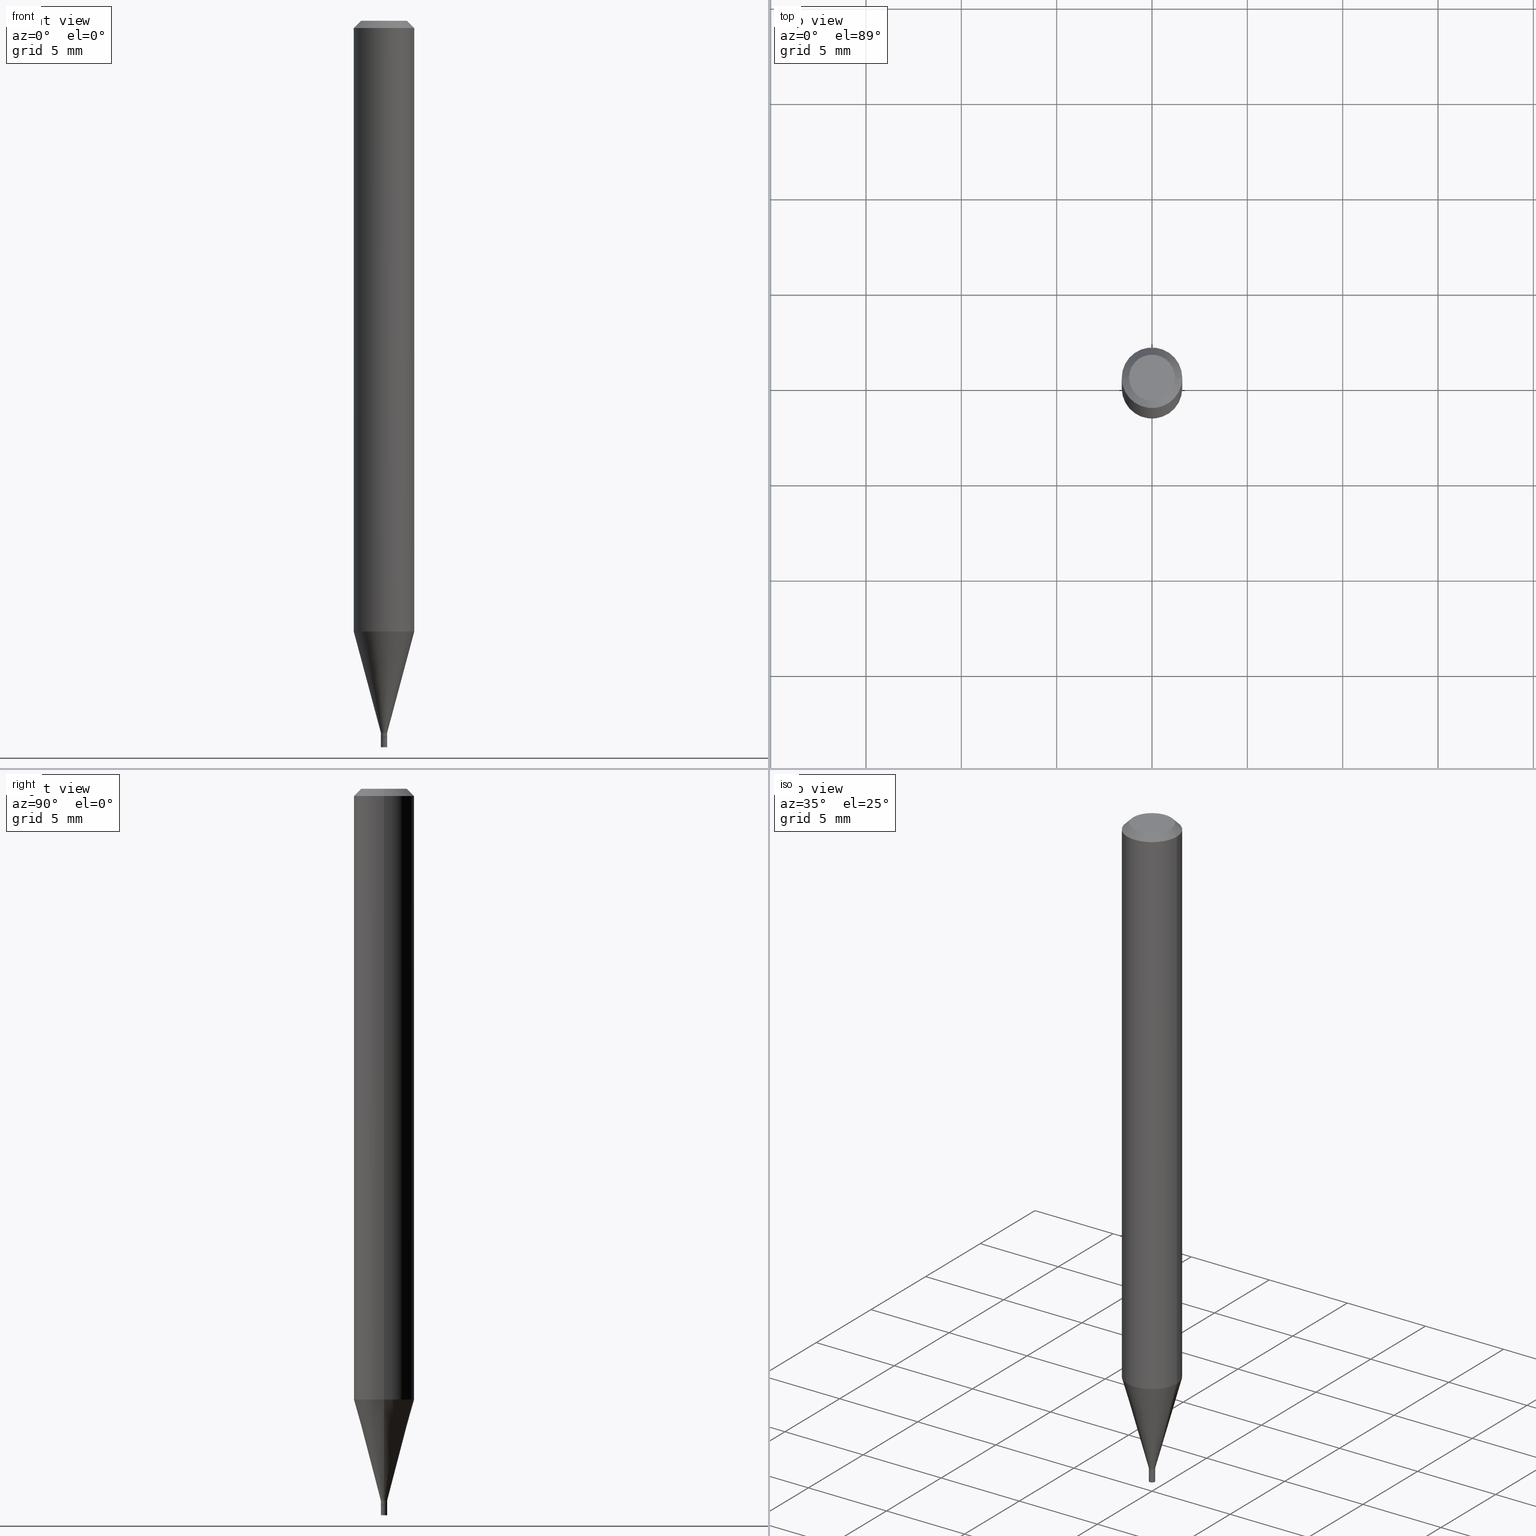
[diagram: canonical four-view strip — front | top / right | iso, engineering-drawing reading convention]
A machine part, canonical four-view strip (front | top / right | iso — engineering-drawing reading convention). The complete STEP part file that produces these views, byte-faithful:
ISO-10303-21;
HEADER;
FILE_DESCRIPTION (( 'STEP AP203' ),
    '1' );
FILE_NAME ('02209.STEP',
    '2024-03-18T19:54:26',
    ( '' ),
    ( '' ),
    'SwSTEP 2.0',
    'SolidWorks 2023',
    '' );
FILE_SCHEMA (( 'CONFIG_CONTROL_DESIGN' ));
ENDSEC;

DATA;
#1 = EDGE_LOOP ( 'NONE', ( #412, #67, #243, #125 ) ) ;
#2 = DIRECTION ( 'NONE',  ( 1.000000000000000000, -6.982962677686266711E-15, 0.000000000000000000 ) ) ;
#3 = CARTESIAN_POINT ( 'NONE',  ( 0.000000000000000000, 0.000000000000000000, 0.000000000000000000 ) ) ;
#4 = CARTESIAN_POINT ( 'NONE',  ( -4.460165479722938536E-44, 6.367934238710582481E-30, 1.823848854028390842E-15 ) ) ;
#5 = ORIENTED_EDGE ( 'NONE', *, *, #101, .F. ) ;
#6 = CONICAL_SURFACE ( 'NONE', #333, 0.005999999999999998390, 0.7853981633974718157 ) ;
#7 = ADVANCED_FACE ( 'NONE', ( #426 ), #38, .T. ) ;
#8 = CARTESIAN_POINT ( 'NONE',  ( 0.04749999999999999362, -4.035134999187546083E-16, 1.823848854028393603E-15 ) ) ;
#9 = DIRECTION ( 'NONE',  ( 1.000000000000000000, -6.982962677686194924E-15, 0.000000000000000000 ) ) ;
#10 = VERTEX_POINT ( 'NONE', #429 ) ;
#11 = DIRECTION ( 'NONE',  ( 1.000000000000000000, -6.982962677686334553E-15, 0.000000000000000000 ) ) ;
#12 = DIRECTION ( 'NONE',  ( -0.2588190451025211281, 5.211531920934547886E-15, 0.9659258262890679791 ) ) ;
#13 = ORIENTED_EDGE ( 'NONE', *, *, #113, .F. ) ;
#14 = CARTESIAN_POINT ( 'NONE',  ( 0.006499999999999998834, -5.282611265669678847E-15, -1.500000000000000222 ) ) ;
#15 = CARTESIAN_POINT ( 'NONE',  ( -0.006499999999999921639, -5.119461362994028005E-15, -1.479500000000000259 ) ) ;
#16 = ORIENTED_EDGE ( 'NONE', *, *, #132, .F. ) ;
#17 = AXIS2_PLACEMENT_3D ( 'NONE', #356, #393, #257 ) ;
#18 = DIRECTION ( 'NONE',  ( 1.000000000000000000, -6.982962677686193346E-15, 0.000000000000000000 ) ) ;
#19 = DIRECTION ( 'NONE',  ( -2.445468806185136597E-29, 3.491481338843145583E-15, 1.000000000000000000 ) ) ;
#20 = CARTESIAN_POINT ( 'NONE',  ( 3.594839145092150820E-29, -5.132477568099424807E-15, -1.470000000000000195 ) ) ;
#21 = MANIFOLD_SOLID_BREP ( 'Body-Move/Copy2[2]', #184 ) ;
#22 = VECTOR ( 'NONE', #96, 39.37007874015748143 ) ;
#23 = CARTESIAN_POINT ( 'NONE',  ( 3.594839145092150820E-29, -5.132477568099424807E-15, -1.470000000000000195 ) ) ;
#24 = DATE_AND_TIME ( #318, #62 ) ;
#25 = LINE ( 'NONE', #383, #26 ) ;
#26 = VECTOR ( 'NONE', #340, 39.37007874015748854 ) ;
#27 = CARTESIAN_POINT ( 'NONE',  ( 3.594839145092150820E-29, -5.132477568099424807E-15, -1.470000000000000195 ) ) ;
#28 = UNCERTAINTY_MEASURE_WITH_UNIT (LENGTH_MEASURE( 1.000000000000000082E-05 ), #281, 'distance_accuracy_value', 'NONE');
#29 = CC_DESIGN_PERSON_AND_ORGANIZATION_ASSIGNMENT ( #97, #61, ( #228 ) ) ;
#30 = CARTESIAN_POINT ( 'NONE',  ( 0.000000000000000000, 0.000000000000000000, 0.000000000000000000 ) ) ;
#31 = CALENDAR_DATE ( 2024, 18, 3 ) ;
#32 = EDGE_LOOP ( 'NONE', ( #336, #437, #162, #439 ) ) ;
#33 = ORGANIZATION ( 'UNSPECIFIED', 'UNSPECIFIED', '' ) ;
#34 = PRODUCT_DEFINITION ( 'UNKNOWN', '', #355, #315 ) ;
#35 = FACE_OUTER_BOUND ( 'NONE', #1, .T. ) ;
#36 = DIRECTION ( 'NONE',  ( -2.445468806185136597E-29, 3.491481338843145583E-15, 1.000000000000000000 ) ) ;
#37 = EDGE_CURVE ( 'NONE', #420, #129, #384, .T. ) ;
#38 = CONICAL_SURFACE ( 'NONE', #161, 0.006499999999999919904, 0.2617993877991498519 ) ;
#39 = AXIS2_PLACEMENT_3D ( 'NONE', #30, #389, #103 ) ;
#40 = AXIS2_PLACEMENT_3D ( 'NONE', #306, #403, #47 ) ;
#41 = VERTEX_POINT ( 'NONE', #189 ) ;
#42 = APPROVAL ( #285, 'UNSPECIFIED' ) ;
#43 = FACE_OUTER_BOUND ( 'NONE', #303, .T. ) ;
#44 = ORIENTED_EDGE ( 'NONE', *, *, #305, .F. ) ;
#45 = CARTESIAN_POINT ( 'NONE',  ( -0.04749999999999999362, 3.578768372314242553E-16, 1.823848854028388475E-15 ) ) ;
#46 = EDGE_CURVE ( 'NONE', #331, #300, #304, .T. ) ;
#47 = DIRECTION ( 'NONE',  ( 1.000000000000000000, -6.982962677686193346E-15, 0.000000000000000000 ) ) ;
#48 = EDGE_LOOP ( 'NONE', ( #327, #51, #269, #205 ) ) ;
#49 = AXIS2_PLACEMENT_3D ( 'NONE', #117, #406, #367 ) ;
#50 = CARTESIAN_POINT ( 'NONE',  ( -0.06250000000000000000, -1.783484883234218729E-15, -0.01499999999999999944 ) ) ;
#51 = ORIENTED_EDGE ( 'NONE', *, *, #305, .T. ) ;
#52 = ADVANCED_FACE ( 'NONE', ( #147 ), #98, .T. ) ;
#53 = CARTESIAN_POINT ( 'NONE',  ( -0.06250000000000000000, 4.440892098500626162E-16, -3.074334431409316114E-30 ) ) ;
#54 = CARTESIAN_POINT ( 'NONE',  ( -4.460165479722938536E-44, 6.367934238710582481E-30, 1.823848854028390842E-15 ) ) ;
#55 = ORIENTED_EDGE ( 'NONE', *, *, #187, .T. ) ;
#56 = CIRCLE ( 'NONE', #350, 0.005999999999999998390 ) ;
#57 = DIRECTION ( 'NONE',  ( -2.445468806185136597E-29, 3.491481338843145583E-15, 1.000000000000000000 ) ) ;
#58 = EDGE_LOOP ( 'NONE', ( #198, #44 ) ) ;
#59 = CARTESIAN_POINT ( 'NONE',  ( 0.005999999999999998390, -5.209290157553973331E-15, -1.479999999999999982 ) ) ;
#60 = FACE_OUTER_BOUND ( 'NONE', #282, .T. ) ;
#61 = PERSON_AND_ORGANIZATION_ROLE ( 'classification_officer' ) ;
#62 = LOCAL_TIME ( 15, 54, 26.00000000000000000, #66 ) ;
#63 = DIRECTION ( 'NONE',  ( -2.438088387897960049E-29, 3.491481338843145188E-15, 1.000000000000000000 ) ) ;
#64 = COORDINATED_UNIVERSAL_TIME_OFFSET ( 5, 0, .BEHIND. ) ;
#65 = AXIS2_PLACEMENT_3D ( 'NONE', #3, #290, #230 ) ;
#66 = COORDINATED_UNIVERSAL_TIME_OFFSET ( 5, 0, .BEHIND. ) ;
#67 = ORIENTED_EDGE ( 'NONE', *, *, #260, .T. ) ;
#68 = APPROVAL_PERSON_ORGANIZATION ( #456, #411, #104 ) ;
#69 = CARTESIAN_POINT ( 'NONE',  ( 0.006499999999999919904, -5.177866825504383900E-15, -1.470000000000000195 ) ) ;
#70 = VECTOR ( 'NONE', #192, 39.37007874015748854 ) ;
#71 = DIRECTION ( 'NONE',  ( 1.000000000000000000, -6.982962677686262766E-15, 0.000000000000000000 ) ) ;
#72 = CARTESIAN_POINT ( 'NONE',  ( 4.538925740499691497E-17, 0.006499999999994831960, -1.479999999999999982 ) ) ;
#73 = AXIS2_PLACEMENT_3D ( 'NONE', #23, #312, #455 ) ;
#74 = ORIENTED_EDGE ( 'NONE', *, *, #353, .F. ) ;
#75 = LINE ( 'NONE', #365, #344 ) ;
#76 = AXIS2_PLACEMENT_3D ( 'NONE', #4, #190, #334 ) ;
#77 = ORIENTED_EDGE ( 'NONE', *, *, #46, .F. ) ;
#78 = CARTESIAN_POINT ( 'NONE',  ( 0.000000000000000000, 0.000000000000000000, 0.000000000000000000 ) ) ;
#79 = ADVANCED_FACE ( 'NONE', ( #394 ), #256, .T. ) ;
#80 = LINE ( 'NONE', #145, #149 ) ;
#81 = CARTESIAN_POINT ( 'NONE',  ( -0.005999999999999998390, -5.122110590168138417E-15, -1.479999999999999982 ) ) ;
#82 = CC_DESIGN_APPROVAL ( #415, ( #34 ) ) ;
#83 = ORIENTED_EDGE ( 'NONE', *, *, #37, .T. ) ;
#84 = DIRECTION ( 'NONE',  ( -0.7071067811865642261, 7.493145998870414114E-15, 0.7071067811865309194 ) ) ;
#85 = EDGE_CURVE ( 'NONE', #144, #214, #438, .T. ) ;
#86 = EDGE_LOOP ( 'NONE', ( #442, #295, #141, #150 ) ) ;
#87 = CIRCLE ( 'NONE', #188, 0.006499999999999919904 ) ;
#88 = LINE ( 'NONE', #217, #179 ) ;
#89 = EDGE_LOOP ( 'NONE', ( #13, #444, #378, #310 ) ) ;
#90 = DIRECTION ( 'NONE',  ( 1.000000000000000000, -6.982962677686265922E-15, 4.876176775795935793E-29 ) ) ;
#91 = ORIENTED_EDGE ( 'NONE', *, *, #132, .T. ) ;
#92 = APPROVAL_PERSON_ORGANIZATION ( #140, #415, #428 ) ;
#93 = CARTESIAN_POINT ( 'NONE',  ( 3.618071098750910124E-29, -5.165646640818434953E-15, -1.479500000000000259 ) ) ;
#94 = CARTESIAN_POINT ( 'NONE',  ( 3.083748770443718248E-29, -4.402775966085916006E-15, -1.261005154776143167 ) ) ;
#95 = ADVANCED_FACE ( 'NONE', ( #110 ), #397, .F. ) ;
#96 = DIRECTION ( 'NONE',  ( -2.445468806185136877E-29, 3.491481338843145188E-15, 1.000000000000000000 ) ) ;
#97 = PERSON_AND_ORGANIZATION ( #359, #33 ) ;
#98 = CONICAL_SURFACE ( 'NONE', #116, 0.06250000000000000000, 0.7853981633973876608 ) ;
#99 = APPLICATION_PROTOCOL_DEFINITION ( 'international standard', 'config_control_design', 1994, #171 ) ;
#100 = DIRECTION ( 'NONE',  ( 1.000000000000000000, -6.982962677686194924E-15, 0.000000000000000000 ) ) ;
#101 = EDGE_CURVE ( 'NONE', #374, #272, #352, .T. ) ;
#102 = PERSON_AND_ORGANIZATION ( #359, #33 ) ;
#103 = DIRECTION ( 'NONE',  ( 1.000000000000000000, 0.000000000000000000, 0.000000000000000000 ) ) ;
#104 = APPROVAL_ROLE ( '' ) ;
#105 = DATE_AND_TIME ( #31, #139 ) ;
#106 = FACE_OUTER_BOUND ( 'NONE', #341, .T. ) ;
#107 = DIRECTION ( 'NONE',  ( 2.445468806185136597E-29, -3.491481338843145583E-15, -1.000000000000000000 ) ) ;
#108 = DIRECTION ( 'NONE',  ( 2.445468806185136597E-29, -3.491481338843145583E-15, -1.000000000000000000 ) ) ;
#109 = CIRCLE ( 'NONE', #76, 0.04749999999999999362 ) ;
#110 = FACE_OUTER_BOUND ( 'NONE', #112, .T. ) ;
#111 = CARTESIAN_POINT ( 'NONE',  ( 3.083748770443718248E-29, -4.402775966085916006E-15, -1.261005154776143167 ) ) ;
#112 = EDGE_LOOP ( 'NONE', ( #155, #239 ) ) ;
#113 = EDGE_CURVE ( 'NONE', #214, #420, #407, .T. ) ;
#114 = FACE_OUTER_BOUND ( 'NONE', #48, .T. ) ;
#115 = VERTEX_POINT ( 'NONE', #81 ) ;
#116 = AXIS2_PLACEMENT_3D ( 'NONE', #226, #107, #358 ) ;
#117 = CARTESIAN_POINT ( 'NONE',  ( 3.316907271900976096E-16, 0.04749999999999999362, 7.460790634191459752E-16 ) ) ;
#118 = ORIENTED_EDGE ( 'NONE', *, *, #292, .F. ) ;
#119 = EDGE_CURVE ( 'NONE', #274, #201, #197, .T. ) ;
#120 = CARTESIAN_POINT ( 'NONE',  ( -0.005999999999999998390, -5.124759817342248830E-15, -1.479999999999999982 ) ) ;
#121 = AXIS2_PLACEMENT_3D ( 'NONE', #345, #240, #375 ) ;
#122 = ORIENTED_EDGE ( 'NONE', *, *, #380, .F. ) ;
#123 = DIRECTION ( 'NONE',  ( 2.438088387897960049E-29, -3.491481338843145188E-15, -1.000000000000000000 ) ) ;
#124 = DIRECTION ( 'NONE',  ( 1.000000000000000000, -6.982962677686262766E-15, 0.000000000000000000 ) ) ;
#125 = ORIENTED_EDGE ( 'NONE', *, *, #431, .F. ) ;
#126 = CIRCLE ( 'NONE', #121, 0.06250000000000000000 ) ;
#127 = DIRECTION ( 'NONE',  ( -2.445468806185136597E-29, 3.491481338843145583E-15, 1.000000000000000000 ) ) ;
#128 = CC_DESIGN_PERSON_AND_ORGANIZATION_ASSIGNMENT ( #102, #423, ( #355 ) ) ;
#129 = VERTEX_POINT ( 'NONE', #346 ) ;
#130 = DIRECTION ( 'NONE',  ( -2.438088387897960049E-29, 3.491481338843145188E-15, 1.000000000000000000 ) ) ;
#131 = CARTESIAN_POINT ( 'NONE',  ( 3.619293833154002365E-29, -5.167392381487854879E-15, -1.479999999999999982 ) ) ;
#132 = EDGE_CURVE ( 'NONE', #10, #214, #87, .T. ) ;
#133 = EDGE_CURVE ( 'NONE', #414, #41, #311, .T. ) ;
#134 = DIRECTION ( 'NONE',  ( 1.000000000000000000, -6.982962677686334553E-15, 0.000000000000000000 ) ) ;
#135 = DATE_AND_TIME ( #253, #284 ) ;
#136 = LINE ( 'NONE', #53, #22 ) ;
#137 = PERSON_AND_ORGANIZATION_ROLE ( 'design_owner' ) ;
#138 = EDGE_CURVE ( 'NONE', #361, #252, #313, .T. ) ;
#139 = LOCAL_TIME ( 15, 54, 26.00000000000000000, #251 ) ;
#140 = PERSON_AND_ORGANIZATION ( #359, #33 ) ;
#141 = ORIENTED_EDGE ( 'NONE', *, *, #138, .F. ) ;
#142 = DATE_TIME_ROLE ( 'creation_date' ) ;
#143 = CONICAL_SURFACE ( 'NONE', #448, 0.06250000000000000000, 0.7853981633973876608 ) ;
#144 = VERTEX_POINT ( 'NONE', #15 ) ;
#145 = CARTESIAN_POINT ( 'NONE',  ( 0.006499999999999998834, -4.538925740496073214E-17, 3.169514904267357635E-31 ) ) ;
#146 = AXIS2_PLACEMENT_3D ( 'NONE', #170, #57, #206 ) ;
#147 = FACE_OUTER_BOUND ( 'NONE', #186, .T. ) ;
#148 = FACE_OUTER_BOUND ( 'NONE', #32, .T. ) ;
#149 = VECTOR ( 'NONE', #154, 39.37007874015748143 ) ;
#150 = ORIENTED_EDGE ( 'NONE', *, *, #187, .F. ) ;
#151 = ORIENTED_EDGE ( 'NONE', *, *, #119, .T. ) ;
#152 = FACE_OUTER_BOUND ( 'NONE', #237, .T. ) ;
#153 = APPROVAL_PERSON_ORGANIZATION ( #430, #42, #425 ) ;
#154 = DIRECTION ( 'NONE',  ( -2.445468806185136877E-29, 3.491481338843145188E-15, 1.000000000000000000 ) ) ;
#155 = ORIENTED_EDGE ( 'NONE', *, *, #138, .T. ) ;
#156 = PLANE ( 'NONE',  #49 ) ;
#157 = DIRECTION ( 'NONE',  ( -2.445468806185136597E-29, 3.491481338843145583E-15, 1.000000000000000000 ) ) ;
#158 = ORIENTED_EDGE ( 'NONE', *, *, #380, .T. ) ;
#159 = CARTESIAN_POINT ( 'NONE',  ( 3.668203209277704895E-29, -5.237222008264718177E-15, -1.500000000000000222 ) ) ;
#160 = CARTESIAN_POINT ( 'NONE',  ( 3.619293833154002365E-29, -5.167392381487854879E-15, -1.479999999999999982 ) ) ;
#161 = AXIS2_PLACEMENT_3D ( 'NONE', #27, #176, #100 ) ;
#162 = ORIENTED_EDGE ( 'NONE', *, *, #369, .T. ) ;
#163 = CARTESIAN_POINT ( 'NONE',  ( 0.000000000000000000, 0.000000000000000000, 0.000000000000000000 ) ) ;
#164 = ORIENTED_EDGE ( 'NONE', *, *, #208, .F. ) ;
#165 = CIRCLE ( 'NONE', #40, 0.006499999999999921639 ) ;
#166 = DIRECTION ( 'NONE',  ( 1.000000000000000000, -6.982962677686265922E-15, 4.876176775795935793E-29 ) ) ;
#167 = CARTESIAN_POINT ( 'NONE',  ( 0.005999999999999998390, -5.209290157553973331E-15, -1.479999999999999982 ) ) ;
#168 = ADVANCED_FACE ( 'NONE', ( #148 ), #143, .T. ) ;
#169 = ADVANCED_FACE ( 'NONE', ( #152 ), #268, .T. ) ;
#170 = CARTESIAN_POINT ( 'NONE',  ( 3.668203209277704895E-29, -5.237222008264718177E-15, -1.500000000000000222 ) ) ;
#171 = APPLICATION_CONTEXT ( 'configuration controlled 3d designs of mechanical parts and assemblies' ) ;
#172 = FACE_OUTER_BOUND ( 'NONE', #58, .T. ) ;
#173 = AXIS2_PLACEMENT_3D ( 'NONE', #200, #338, #11 ) ;
#174 = ADVANCED_FACE ( 'NONE', ( #43 ), #232, .T. ) ;
#175 = FACE_OUTER_BOUND ( 'NONE', #317, .T. ) ;
#176 = DIRECTION ( 'NONE',  ( -2.445468806185136597E-29, 3.491481338843145583E-15, 1.000000000000000000 ) ) ;
#177 = PERSON_AND_ORGANIZATION ( #359, #33 ) ;
#178 = LENGTH_MEASURE_WITH_UNIT ( LENGTH_MEASURE( 0.02539999999999999897 ), #275 );
#179 = VECTOR ( 'NONE', #343, 39.37007874015748854 ) ;
#180 = APPROVAL_DATE_TIME ( #105, #415 ) ;
#181 = PERSON_AND_ORGANIZATION_ROLE ( 'design_supplier' ) ;
#182 = CARTESIAN_POINT ( 'NONE',  ( 0.006499999999999921639, -4.538925740496018363E-17, 3.169514904267319975E-31 ) ) ;
#183 = EDGE_CURVE ( 'NONE', #10, #129, #297, .T. ) ;
#184 = CLOSED_SHELL ( 'NONE', ( #385, #329, #52, #174, #422, #7, #169, #168, #225, #337, #223, #207 ) ) ;
#185 = CC_DESIGN_APPROVAL ( #411, ( #228 ) ) ;
#186 = EDGE_LOOP ( 'NONE', ( #265, #366, #362, #451 ) ) ;
#187 = EDGE_CURVE ( 'NONE', #374, #361, #80, .T. ) ;
#188 = AXIS2_PLACEMENT_3D ( 'NONE', #241, #19, #9 ) ;
#189 = CARTESIAN_POINT ( 'NONE',  ( 0.006499999999999921639, -5.211035898223394834E-15, -1.479500000000000259 ) ) ;
#190 = DIRECTION ( 'NONE',  ( -2.445468806185136597E-29, 3.491481338843145583E-15, 1.000000000000000000 ) ) ;
#191 = ORIENTED_EDGE ( 'NONE', *, *, #452, .T. ) ;
#192 = DIRECTION ( 'NONE',  ( 0.2588190451025211281, 1.565188264969622954E-15, 0.9659258262890679791 ) ) ;
#193 = ORIENTED_EDGE ( 'NONE', *, *, #436, .F. ) ;
#194 = CARTESIAN_POINT ( 'NONE',  ( -0.006499999999999919904, -4.522489523255436413E-15, -1.470000000000000195 ) ) ;
#195 = APPLICATION_CONTEXT ( 'configuration controlled 3d designs of mechanical parts and assemblies' ) ;
#196 = ADVANCED_BREP_SHAPE_REPRESENTATION ( '02209', ( #332, #21, #39 ), #242 ) ;
#197 = CIRCLE ( 'NONE', #250, 0.04749999999999999362 ) ;
#198 = ORIENTED_EDGE ( 'NONE', *, *, #452, .F. ) ;
#199 = DIRECTION ( 'NONE',  ( -2.445468806185136597E-29, 3.491481338843145583E-15, 1.000000000000000000 ) ) ;
#200 = CARTESIAN_POINT ( 'NONE',  ( 3.619293833154002365E-29, -5.167392381487854879E-15, -1.479999999999999982 ) ) ;
#201 = VERTEX_POINT ( 'NONE', #45 ) ;
#202 = CARTESIAN_POINT ( 'NONE',  ( 3.576687321579069994E-29, -5.368277968210015545E-15, -1.500000000000000222 ) ) ;
#203 = PRODUCT_DEFINITION_SHAPE ( 'NONE', 'NONE',  #34 ) ;
#204 = DIRECTION ( 'NONE',  ( 0.7071067811865642261, -2.468850131082431399E-15, 0.7071067811865309194 ) ) ;
#205 = ORIENTED_EDGE ( 'NONE', *, *, #260, .F. ) ;
#206 = DIRECTION ( 'NONE',  ( 1.000000000000000000, -6.982962677686258822E-15, 0.000000000000000000 ) ) ;
#207 = ADVANCED_FACE ( 'NONE', ( #35 ), #224, .T. ) ;
#208 = EDGE_CURVE ( 'NONE', #272, #252, #75, .T. ) ;
#209 = ORIENTED_EDGE ( 'NONE', *, *, #436, .T. ) ;
#210 = AXIS2_PLACEMENT_3D ( 'NONE', #160, #441, #266 ) ;
#211 = FACE_OUTER_BOUND ( 'NONE', #370, .T. ) ;
#212 = CARTESIAN_POINT ( 'NONE',  ( -0.006499999999999919904, -5.086292290275018648E-15, -1.470000000000000195 ) ) ;
#213 = FACE_OUTER_BOUND ( 'NONE', #86, .T. ) ;
#214 = VERTEX_POINT ( 'NONE', #194 ) ;
#215 = CLOSED_SHELL ( 'NONE', ( #395, #464, #79, #95 ) ) ;
#216 = EDGE_CURVE ( 'NONE', #41, #10, #440, .T. ) ;
#217 = CARTESIAN_POINT ( 'NONE',  ( 0.06250000000000000000, -4.811533449433679005E-16, -0.01499999999999999944 ) ) ;
#218 = APPROVAL_DATE_TIME ( #386, #411 ) ;
#219 = AXIS2_PLACEMENT_3D ( 'NONE', #72, #123, #234 ) ;
#220 =( NAMED_UNIT ( * ) PLANE_ANGLE_UNIT ( ) SI_UNIT ( $, .RADIAN. ) );
#221 = SECURITY_CLASSIFICATION_LEVEL ( 'unclassified' ) ;
#222 = CC_DESIGN_SECURITY_CLASSIFICATION ( #228, ( #355 ) ) ;
#223 = ADVANCED_FACE ( 'NONE', ( #114 ), #286, .T. ) ;
#224 = CYLINDRICAL_SURFACE ( 'NONE', #65, 0.006499999999999921639 ) ;
#225 = ADVANCED_FACE ( 'NONE', ( #398 ), #156, .F. ) ;
#226 = CARTESIAN_POINT ( 'NONE',  ( 3.668203209277705088E-31, -5.237222008264718399E-17, -0.01499999999999999944 ) ) ;
#227 = DIRECTION ( 'NONE',  ( -2.445468806185136597E-29, 3.491481338843145583E-15, 1.000000000000000000 ) ) ;
#228 = SECURITY_CLASSIFICATION ( '', '', #221 ) ;
#229 = VECTOR ( 'NONE', #435, 39.37007874015748143 ) ;
#230 = DIRECTION ( 'NONE',  ( 1.000000000000000000, -6.982962677686265922E-15, 4.876176775795935793E-29 ) ) ;
#231 = ORIENTED_EDGE ( 'NONE', *, *, #287, .T. ) ;
#232 = CYLINDRICAL_SURFACE ( 'NONE', #17, 0.06250000000000000000 ) ;
#233 = DIRECTION ( 'NONE',  ( -2.445468806185136877E-29, 3.491481338843145188E-15, 1.000000000000000000 ) ) ;
#234 = DIRECTION ( 'NONE',  ( -1.000000000000000000, 6.982962677686265922E-15, -4.876176775795935793E-29 ) ) ;
#235 = DIRECTION ( 'NONE',  ( -2.445468806185136597E-29, 3.491481338843145583E-15, 1.000000000000000000 ) ) ;
#236 = AXIS2_PLACEMENT_3D ( 'NONE', #94, #246, #124 ) ;
#237 = EDGE_LOOP ( 'NONE', ( #193, #83, #231, #349 ) ) ;
#238 = DIRECTION ( 'NONE',  ( -2.445468806185136597E-29, 3.491481338843145583E-15, 1.000000000000000000 ) ) ;
#239 = ORIENTED_EDGE ( 'NONE', *, *, #292, .T. ) ;
#240 = DIRECTION ( 'NONE',  ( -2.445468806185136597E-29, 3.491481338843145583E-15, 1.000000000000000000 ) ) ;
#241 = CARTESIAN_POINT ( 'NONE',  ( 3.594839145092150820E-29, -5.132477568099424807E-15, -1.470000000000000195 ) ) ;
#242 =( GEOMETRIC_REPRESENTATION_CONTEXT ( 3 ) GLOBAL_UNCERTAINTY_ASSIGNED_CONTEXT ( ( #28 ) ) GLOBAL_UNIT_ASSIGNED_CONTEXT ( ( #281, #220, #392 ) ) REPRESENTATION_CONTEXT ( 'NONE', 'WORKASPACE' ) );
#243 = ORIENTED_EDGE ( 'NONE', *, *, #216, .T. ) ;
#244 = DIRECTION ( 'NONE',  ( -2.445468806185136597E-29, 3.491481338843145583E-15, 1.000000000000000000 ) ) ;
#245 = CALENDAR_DATE ( 2024, 18, 3 ) ;
#246 = DIRECTION ( 'NONE',  ( -2.445468806185136597E-29, 3.491481338843145583E-15, 1.000000000000000000 ) ) ;
#247 = CARTESIAN_POINT ( 'NONE',  ( 3.619293833154002365E-29, -5.167392381487854879E-15, -1.479999999999999982 ) ) ;
#248 = APPROVAL_DATE_TIME ( #24, #42 ) ;
#249 = ORIENTED_EDGE ( 'NONE', *, *, #133, .F. ) ;
#250 = AXIS2_PLACEMENT_3D ( 'NONE', #54, #416, #335 ) ;
#251 = COORDINATED_UNIVERSAL_TIME_OFFSET ( 5, 0, .BEHIND. ) ;
#252 = VERTEX_POINT ( 'NONE', #462 ) ;
#253 = CALENDAR_DATE ( 2024, 18, 3 ) ;
#254 = CC_DESIGN_DATE_AND_TIME_ASSIGNMENT ( #135, #142, ( #34 ) ) ;
#255 = DIRECTION ( 'NONE',  ( 1.000000000000000000, -6.982962677686266711E-15, 4.876176775795935793E-29 ) ) ;
#256 = CYLINDRICAL_SURFACE ( 'NONE', #325, 0.006499999999999998834 ) ;
#257 = DIRECTION ( 'NONE',  ( 1.000000000000000000, -6.982962677686266711E-15, 4.876176775795935793E-29 ) ) ;
#258 = CIRCLE ( 'NONE', #173, 0.005999999999999998390 ) ;
#259 = DIRECTION ( 'NONE',  ( 1.000000000000000000, -6.982962677686267499E-15, 4.876176775795935793E-29 ) ) ;
#260 = EDGE_CURVE ( 'NONE', #144, #41, #165, .T. ) ;
#261 = CARTESIAN_POINT ( 'NONE',  ( 0.000000000000000000, 0.000000000000000000, 0.000000000000000000 ) ) ;
#262 = AXIS2_PLACEMENT_3D ( 'NONE', #449, #244, #90 ) ;
#263 = CARTESIAN_POINT ( 'NONE',  ( -0.006499999999999921639, 4.618527782440595529E-17, -3.197307808665649928E-31 ) ) ;
#264 = DIRECTION ( 'NONE',  ( 1.000000000000000000, -6.982962677686334553E-15, 0.000000000000000000 ) ) ;
#265 = ORIENTED_EDGE ( 'NONE', *, *, #119, .F. ) ;
#266 = DIRECTION ( 'NONE',  ( 1.000000000000000000, -6.982962677686258822E-15, 0.000000000000000000 ) ) ;
#267 = CC_DESIGN_PERSON_AND_ORGANIZATION_ASSIGNMENT ( #320, #457, ( #34 ) ) ;
#268 = CYLINDRICAL_SURFACE ( 'NONE', #409, 0.06250000000000000000 ) ;
#269 = ORIENTED_EDGE ( 'NONE', *, *, #133, .T. ) ;
#270 = CYLINDRICAL_SURFACE ( 'NONE', #262, 0.006499999999999921639 ) ;
#271 = EDGE_CURVE ( 'NONE', #201, #274, #109, .T. ) ;
#272 = VERTEX_POINT ( 'NONE', #328 ) ;
#273 = CYLINDRICAL_SURFACE ( 'NONE', #319, 0.006499999999999998834 ) ;
#274 = VERTEX_POINT ( 'NONE', #8 ) ;
#275 =( LENGTH_UNIT ( ) NAMED_UNIT ( * ) SI_UNIT ( $, .METRE. ) );
#276 = AXIS2_PLACEMENT_3D ( 'NONE', #20, #413, #348 ) ;
#277 = CARTESIAN_POINT ( 'NONE',  ( 0.06250000000000000000, -4.888073874380388472E-16, -0.01499999999999999944 ) ) ;
#278 = AXIS2_PLACEMENT_3D ( 'NONE', #131, #157, #302 ) ;
#279 = CALENDAR_DATE ( 2024, 18, 3 ) ;
#280 = CARTESIAN_POINT ( 'NONE',  ( 0.006499999999999998834, -5.212781638892815549E-15, -1.479999999999999982 ) ) ;
#281 =( CONVERSION_BASED_UNIT ( 'INCH', #178 ) LENGTH_UNIT ( ) NAMED_UNIT ( #289 ) );
#282 = EDGE_LOOP ( 'NONE', ( #158, #324, #16, #447 ) ) ;
#283 = DATE_TIME_ROLE ( 'classification_date' ) ;
#284 = LOCAL_TIME ( 15, 54, 26.00000000000000000, #64 ) ;
#285 = APPROVAL_STATUS ( 'not_yet_approved' ) ;
#286 = CONICAL_SURFACE ( 'NONE', #400, 0.005999999999999998390, 0.7853981633974718157 ) ;
#287 = EDGE_CURVE ( 'NONE', #129, #331, #401, .T. ) ;
#288 = MECHANICAL_CONTEXT ( 'NONE', #171, 'mechanical' ) ;
#289 = DIMENSIONAL_EXPONENTS ( 1.000000000000000000, 0.000000000000000000, 0.000000000000000000, 0.000000000000000000, 0.000000000000000000, 0.000000000000000000, 0.000000000000000000 ) ;
#290 = DIRECTION ( 'NONE',  ( -2.445468806185136597E-29, 3.491481338843145583E-15, 1.000000000000000000 ) ) ;
#291 = CIRCLE ( 'NONE', #146, 0.006499999999999998834 ) ;
#292 = EDGE_CURVE ( 'NONE', #252, #361, #371, .T. ) ;
#293 = CIRCLE ( 'NONE', #465, 0.006499999999999921639 ) ;
#294 = CARTESIAN_POINT ( 'NONE',  ( 3.668203209277705088E-31, -5.237222008264718399E-17, -0.01499999999999999944 ) ) ;
#295 = ORIENTED_EDGE ( 'NONE', *, *, #208, .T. ) ;
#296 = AXIS2_PLACEMENT_3D ( 'NONE', #202, #130, #166 ) ;
#297 = LINE ( 'NONE', #69, #70 ) ;
#298 = EDGE_CURVE ( 'NONE', #115, #144, #443, .T. ) ;
#299 = CARTESIAN_POINT ( 'NONE',  ( 0.06250000000000000000, -4.364351673553916694E-16, 3.047610484872459871E-30 ) ) ;
#300 = VERTEX_POINT ( 'NONE', #50 ) ;
#301 = DIRECTION ( 'NONE',  ( -2.445468806185136877E-29, 3.491481338843145188E-15, 1.000000000000000000 ) ) ;
#302 = DIRECTION ( 'NONE',  ( 1.000000000000000000, -6.982962677686258822E-15, 0.000000000000000000 ) ) ;
#303 = EDGE_LOOP ( 'NONE', ( #432, #209, #77, #339 ) ) ;
#304 = CIRCLE ( 'NONE', #360, 0.06250000000000000000 ) ;
#305 = EDGE_CURVE ( 'NONE', #115, #414, #258, .T. ) ;
#306 = CARTESIAN_POINT ( 'NONE',  ( 3.618071098750910124E-29, -5.165646640818434953E-15, -1.479500000000000259 ) ) ;
#307 = ORIENTED_EDGE ( 'NONE', *, *, #298, .T. ) ;
#308 = DIRECTION ( 'NONE',  ( 1.000000000000000000, -6.982962677686334553E-15, 0.000000000000000000 ) ) ;
#309 = VECTOR ( 'NONE', #12, 39.37007874015748854 ) ;
#310 = ORIENTED_EDGE ( 'NONE', *, *, #37, .F. ) ;
#311 = LINE ( 'NONE', #167, #387 ) ;
#312 = DIRECTION ( 'NONE',  ( -2.445468806185136597E-29, 3.491481338843145583E-15, 1.000000000000000000 ) ) ;
#313 = CIRCLE ( 'NONE', #278, 0.006499999999999998834 ) ;
#314 = APPROVAL_STATUS ( 'not_yet_approved' ) ;
#315 = DESIGN_CONTEXT ( 'detailed design', #195, 'design' ) ;
#316 = PERSON_AND_ORGANIZATION ( #359, #33 ) ;
#317 = EDGE_LOOP ( 'NONE', ( #5, #408 ) ) ;
#318 = CALENDAR_DATE ( 2024, 18, 3 ) ;
#319 = AXIS2_PLACEMENT_3D ( 'NONE', #163, #127, #377 ) ;
#320 = PERSON_AND_ORGANIZATION ( #359, #33 ) ;
#321 = COORDINATED_UNIVERSAL_TIME_OFFSET ( 5, 0, .BEHIND. ) ;
#322 = DIRECTION ( 'NONE',  ( -2.445468806185136597E-29, 3.491481338843145583E-15, 1.000000000000000000 ) ) ;
#323 = LOCAL_TIME ( 15, 54, 26.00000000000000000, #391 ) ;
#324 = ORIENTED_EDGE ( 'NONE', *, *, #85, .T. ) ;
#325 = AXIS2_PLACEMENT_3D ( 'NONE', #261, #227, #259 ) ;
#326 = CC_DESIGN_PERSON_AND_ORGANIZATION_ASSIGNMENT ( #177, #181, ( #355 ) ) ;
#327 = ORIENTED_EDGE ( 'NONE', *, *, #298, .F. ) ;
#328 = CARTESIAN_POINT ( 'NONE',  ( -0.006499999999999998834, -5.156121917051880369E-15, -1.500000000000000222 ) ) ;
#329 = ADVANCED_FACE ( 'NONE', ( #106 ), #6, .T. ) ;
#330 = CARTESIAN_POINT ( 'NONE',  ( 3.619293833154002365E-29, -5.167392381487854879E-15, -1.479999999999999982 ) ) ;
#331 = VERTEX_POINT ( 'NONE', #277 ) ;
#332 = MANIFOLD_SOLID_BREP ( 'Body-Move/Copy2[1]', #215 ) ;
#333 = AXIS2_PLACEMENT_3D ( 'NONE', #453, #238, #134 ) ;
#334 = DIRECTION ( 'NONE',  ( 1.000000000000000000, -6.982962677686267499E-15, 5.108144071313017768E-29 ) ) ;
#335 = DIRECTION ( 'NONE',  ( 1.000000000000000000, -6.982962677686267499E-15, 5.108144071313017768E-29 ) ) ;
#336 = ORIENTED_EDGE ( 'NONE', *, *, #461, .F. ) ;
#337 = ADVANCED_FACE ( 'NONE', ( #172 ), #421, .F. ) ;
#338 = DIRECTION ( 'NONE',  ( -2.445468806185136597E-29, 3.491481338843145583E-15, 1.000000000000000000 ) ) ;
#339 = ORIENTED_EDGE ( 'NONE', *, *, #287, .F. ) ;
#340 = DIRECTION ( 'NONE',  ( -0.7071067811865044961, 2.468850131081806621E-15, -0.7071067811865903163 ) ) ;
#341 = EDGE_LOOP ( 'NONE', ( #191, #307, #122, #249 ) ) ;
#342 = PRODUCT_RELATED_PRODUCT_CATEGORY ( 'detail', '', ( #450 ) ) ;
#343 = DIRECTION ( 'NONE',  ( 0.7071067811865044961, -7.319954787623109317E-15, -0.7071067811865903163 ) ) ;
#344 = VECTOR ( 'NONE', #368, 39.37007874015748143 ) ;
#345 = CARTESIAN_POINT ( 'NONE',  ( 3.668203209277705088E-31, -5.237222008264718399E-17, -0.01499999999999999944 ) ) ;
#346 = CARTESIAN_POINT ( 'NONE',  ( 0.06250000000000000000, -4.839211133441306886E-15, -1.261005154776143167 ) ) ;
#347 = CC_DESIGN_PERSON_AND_ORGANIZATION_ASSIGNMENT ( #316, #137, ( #450 ) ) ;
#348 = DIRECTION ( 'NONE',  ( 1.000000000000000000, -6.982962677686194924E-15, 0.000000000000000000 ) ) ;
#349 = ORIENTED_EDGE ( 'NONE', *, *, #381, .F. ) ;
#350 = AXIS2_PLACEMENT_3D ( 'NONE', #247, #410, #308 ) ;
#351 = CARTESIAN_POINT ( 'NONE',  ( -0.06250000000000000000, -3.958686756235853390E-15, -1.261005154776143167 ) ) ;
#352 = CIRCLE ( 'NONE', #427, 0.006499999999999998834 ) ;
#353 = EDGE_CURVE ( 'NONE', #129, #420, #419, .T. ) ;
#354 = DATE_AND_TIME ( #279, #405 ) ;
#355 = PRODUCT_DEFINITION_FORMATION_WITH_SPECIFIED_SOURCE ( 'ANY', '', #450, .NOT_KNOWN. ) ;
#356 = CARTESIAN_POINT ( 'NONE',  ( 0.000000000000000000, 0.000000000000000000, 0.000000000000000000 ) ) ;
#357 = VECTOR ( 'NONE', #84, 39.37007874015748143 ) ;
#358 = DIRECTION ( 'NONE',  ( -1.000000000000000000, 6.982962677686266711E-15, 0.000000000000000000 ) ) ;
#359 = PERSON ( 'UNSPECIFIED', 'UNSPECIFIED', 'UNSPECIFIED', ('UNSPECIFIED'), ('UNSPECIFIED'), ('UNSPECIFIED') ) ;
#360 = AXIS2_PLACEMENT_3D ( 'NONE', #294, #364, #2 ) ;
#361 = VERTEX_POINT ( 'NONE', #280 ) ;
#362 = ORIENTED_EDGE ( 'NONE', *, *, #46, .T. ) ;
#363 = VECTOR ( 'NONE', #233, 39.37007874015748143 ) ;
#364 = DIRECTION ( 'NONE',  ( -2.445468806185136597E-29, 3.491481338843145583E-15, 1.000000000000000000 ) ) ;
#365 = CARTESIAN_POINT ( 'NONE',  ( -0.006499999999999998834, 4.618527782440650380E-17, -3.197307808665688464E-31 ) ) ;
#366 = ORIENTED_EDGE ( 'NONE', *, *, #461, .T. ) ;
#367 = DIRECTION ( 'NONE',  ( -1.000000000000000000, 6.982962677686265922E-15, -4.876176775795935793E-29 ) ) ;
#368 = DIRECTION ( 'NONE',  ( -2.445468806185136877E-29, 3.491481338843145188E-15, 1.000000000000000000 ) ) ;
#369 = EDGE_CURVE ( 'NONE', #201, #300, #25, .T. ) ;
#370 = EDGE_LOOP ( 'NONE', ( #91, #390, #74, #466 ) ) ;
#371 = CIRCLE ( 'NONE', #210, 0.006499999999999998834 ) ;
#372 = CARTESIAN_POINT ( 'NONE',  ( 3.668203209277705088E-31, -5.237222008264718399E-17, -0.01499999999999999944 ) ) ;
#373 = DIRECTION ( 'NONE',  ( 1.000000000000000000, -6.982962677686258822E-15, 0.000000000000000000 ) ) ;
#374 = VERTEX_POINT ( 'NONE', #14 ) ;
#375 = DIRECTION ( 'NONE',  ( 1.000000000000000000, -6.982962677686266711E-15, 0.000000000000000000 ) ) ;
#376 = ORIENTED_EDGE ( 'NONE', *, *, #454, .T. ) ;
#377 = DIRECTION ( 'NONE',  ( 1.000000000000000000, -6.982962677686267499E-15, 4.876176775795935793E-29 ) ) ;
#378 = ORIENTED_EDGE ( 'NONE', *, *, #183, .T. ) ;
#379 = DIRECTION ( 'NONE',  ( -2.445468806185136597E-29, 3.491481338843145583E-15, 1.000000000000000000 ) ) ;
#380 = EDGE_CURVE ( 'NONE', #41, #144, #293, .T. ) ;
#381 = EDGE_CURVE ( 'NONE', #300, #331, #126, .T. ) ;
#382 = DIRECTION ( 'NONE',  ( 1.000000000000000000, -6.982962677686265922E-15, 4.876176775795935793E-29 ) ) ;
#383 = CARTESIAN_POINT ( 'NONE',  ( -0.06250000000000000000, 3.840629472727444916E-16, -0.01499999999999999944 ) ) ;
#384 = CIRCLE ( 'NONE', #445, 0.06250000000000000000 ) ;
#385 = ADVANCED_FACE ( 'NONE', ( #60 ), #270, .T. ) ;
#386 = DATE_AND_TIME ( #245, #323 ) ;
#387 = VECTOR ( 'NONE', #204, 39.37007874015748143 ) ;
#388 = APPROVAL_STATUS ( 'not_yet_approved' ) ;
#389 = DIRECTION ( 'NONE',  ( 0.000000000000000000, 0.000000000000000000, 1.000000000000000000 ) ) ;
#390 = ORIENTED_EDGE ( 'NONE', *, *, #113, .T. ) ;
#391 = COORDINATED_UNIVERSAL_TIME_OFFSET ( 5, 0, .BEHIND. ) ;
#392 =( NAMED_UNIT ( * ) SI_UNIT ( $, .STERADIAN. ) SOLID_ANGLE_UNIT ( ) );
#393 = DIRECTION ( 'NONE',  ( -2.445468806185136597E-29, 3.491481338843145583E-15, 1.000000000000000000 ) ) ;
#394 = FACE_OUTER_BOUND ( 'NONE', #402, .T. ) ;
#395 = ADVANCED_FACE ( 'NONE', ( #213 ), #273, .T. ) ;
#396 = VECTOR ( 'NONE', #301, 39.37007874015748143 ) ;
#397 = PLANE ( 'NONE',  #219 ) ;
#398 = FACE_OUTER_BOUND ( 'NONE', #399, .T. ) ;
#399 = EDGE_LOOP ( 'NONE', ( #404, #151 ) ) ;
#400 = AXIS2_PLACEMENT_3D ( 'NONE', #330, #322, #264 ) ;
#401 = LINE ( 'NONE', #299, #396 ) ;
#402 = EDGE_LOOP ( 'NONE', ( #164, #376, #55, #118 ) ) ;
#403 = DIRECTION ( 'NONE',  ( -2.445468806185136597E-29, 3.491481338843145583E-15, 1.000000000000000000 ) ) ;
#404 = ORIENTED_EDGE ( 'NONE', *, *, #271, .T. ) ;
#405 = LOCAL_TIME ( 15, 54, 26.00000000000000000, #321 ) ;
#406 = DIRECTION ( 'NONE',  ( 2.438088387897960049E-29, -3.491481338843145188E-15, -1.000000000000000000 ) ) ;
#407 = LINE ( 'NONE', #212, #309 ) ;
#408 = ORIENTED_EDGE ( 'NONE', *, *, #454, .F. ) ;
#409 = AXIS2_PLACEMENT_3D ( 'NONE', #78, #235, #255 ) ;
#410 = DIRECTION ( 'NONE',  ( -2.445468806185136597E-29, 3.491481338843145583E-15, 1.000000000000000000 ) ) ;
#411 = APPROVAL ( #388, 'UNSPECIFIED' ) ;
#412 = ORIENTED_EDGE ( 'NONE', *, *, #85, .F. ) ;
#413 = DIRECTION ( 'NONE',  ( -2.445468806185136597E-29, 3.491481338843145583E-15, 1.000000000000000000 ) ) ;
#414 = VERTEX_POINT ( 'NONE', #59 ) ;
#415 = APPROVAL ( #314, 'UNSPECIFIED' ) ;
#416 = DIRECTION ( 'NONE',  ( -2.445468806185136597E-29, 3.491481338843145583E-15, 1.000000000000000000 ) ) ;
#417 = CC_DESIGN_APPROVAL ( #42, ( #355 ) ) ;
#418 = CARTESIAN_POINT ( 'NONE',  ( 3.619293833154002365E-29, -5.167392381487854879E-15, -1.479999999999999982 ) ) ;
#419 = CIRCLE ( 'NONE', #236, 0.06250000000000000000 ) ;
#420 = VERTEX_POINT ( 'NONE', #351 ) ;
#421 = PLANE ( 'NONE',  #434 ) ;
#422 = ADVANCED_FACE ( 'NONE', ( #211 ), #424, .T. ) ;
#423 = PERSON_AND_ORGANIZATION_ROLE ( 'creator' ) ;
#424 = CONICAL_SURFACE ( 'NONE', #276, 0.006499999999999919904, 0.2617993877991498519 ) ;
#425 = APPROVAL_ROLE ( '' ) ;
#426 = FACE_OUTER_BOUND ( 'NONE', #89, .T. ) ;
#427 = AXIS2_PLACEMENT_3D ( 'NONE', #159, #199, #373 ) ;
#428 = APPROVAL_ROLE ( '' ) ;
#429 = CARTESIAN_POINT ( 'NONE',  ( 0.006499999999999919904, -5.177866825504383900E-15, -1.470000000000000195 ) ) ;
#430 = PERSON_AND_ORGANIZATION ( #359, #33 ) ;
#431 = EDGE_CURVE ( 'NONE', #214, #10, #463, .T. ) ;
#432 = ORIENTED_EDGE ( 'NONE', *, *, #353, .T. ) ;
#433 = DIRECTION ( 'NONE',  ( -1.000000000000000000, 6.982962677686266711E-15, 0.000000000000000000 ) ) ;
#434 = AXIS2_PLACEMENT_3D ( 'NONE', #418, #63, #382 ) ;
#435 = DIRECTION ( 'NONE',  ( -2.445468806185136877E-29, 3.491481338843145188E-15, 1.000000000000000000 ) ) ;
#436 = EDGE_CURVE ( 'NONE', #420, #300, #136, .T. ) ;
#437 = ORIENTED_EDGE ( 'NONE', *, *, #271, .F. ) ;
#438 = LINE ( 'NONE', #263, #229 ) ;
#439 = ORIENTED_EDGE ( 'NONE', *, *, #381, .T. ) ;
#440 = LINE ( 'NONE', #182, #363 ) ;
#441 = DIRECTION ( 'NONE',  ( -2.445468806185136597E-29, 3.491481338843145583E-15, 1.000000000000000000 ) ) ;
#442 = ORIENTED_EDGE ( 'NONE', *, *, #101, .T. ) ;
#443 = LINE ( 'NONE', #120, #357 ) ;
#444 = ORIENTED_EDGE ( 'NONE', *, *, #431, .T. ) ;
#445 = AXIS2_PLACEMENT_3D ( 'NONE', #111, #36, #71 ) ;
#446 = PLANE ( 'NONE',  #296 ) ;
#447 = ORIENTED_EDGE ( 'NONE', *, *, #216, .F. ) ;
#448 = AXIS2_PLACEMENT_3D ( 'NONE', #372, #108, #433 ) ;
#449 = CARTESIAN_POINT ( 'NONE',  ( 0.000000000000000000, 0.000000000000000000, 0.000000000000000000 ) ) ;
#450 = PRODUCT ( '02209', '02209', '', ( #288 ) ) ;
#451 = ORIENTED_EDGE ( 'NONE', *, *, #369, .F. ) ;
#452 = EDGE_CURVE ( 'NONE', #414, #115, #56, .T. ) ;
#453 = CARTESIAN_POINT ( 'NONE',  ( 3.619293833154002365E-29, -5.167392381487854879E-15, -1.479999999999999982 ) ) ;
#454 = EDGE_CURVE ( 'NONE', #272, #374, #291, .T. ) ;
#455 = DIRECTION ( 'NONE',  ( 1.000000000000000000, -6.982962677686194924E-15, 0.000000000000000000 ) ) ;
#456 = PERSON_AND_ORGANIZATION ( #359, #33 ) ;
#457 = PERSON_AND_ORGANIZATION_ROLE ( 'creator' ) ;
#458 = APPLICATION_PROTOCOL_DEFINITION ( 'international standard', 'config_control_design', 1994, #195 ) ;
#459 = CC_DESIGN_DATE_AND_TIME_ASSIGNMENT ( #354, #283, ( #228 ) ) ;
#460 = SHAPE_DEFINITION_REPRESENTATION ( #203, #196 ) ;
#461 = EDGE_CURVE ( 'NONE', #274, #331, #88, .T. ) ;
#462 = CARTESIAN_POINT ( 'NONE',  ( -0.006499999999999998834, -5.156121917051880369E-15, -1.479999999999999982 ) ) ;
#463 = CIRCLE ( 'NONE', #73, 0.006499999999999919904 ) ;
#464 = ADVANCED_FACE ( 'NONE', ( #175 ), #446, .F. ) ;
#465 = AXIS2_PLACEMENT_3D ( 'NONE', #93, #379, #18 ) ;
#466 = ORIENTED_EDGE ( 'NONE', *, *, #183, .F. ) ;
ENDSEC;
END-ISO-10303-21;
